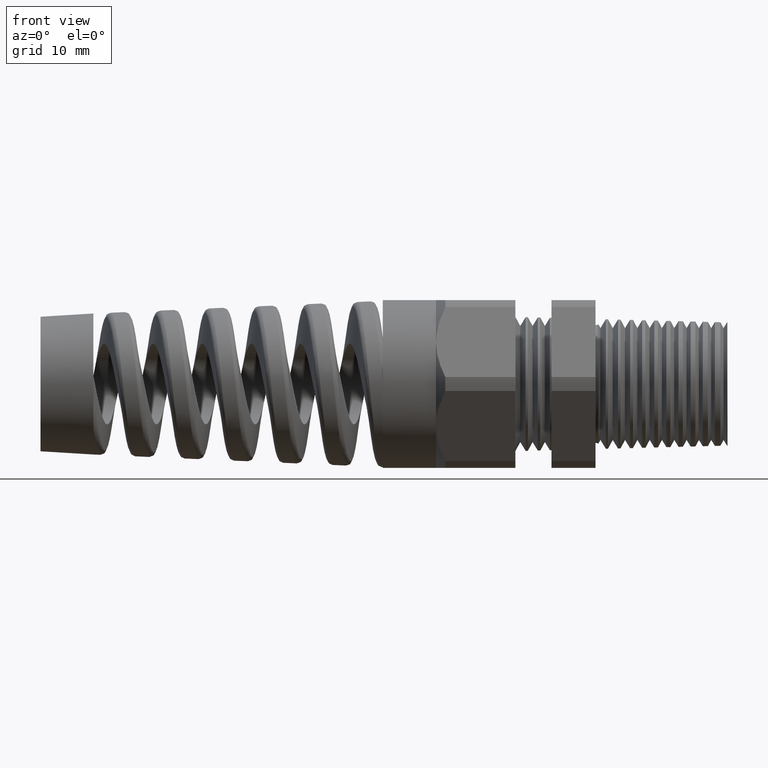
[diagram: clean part render]
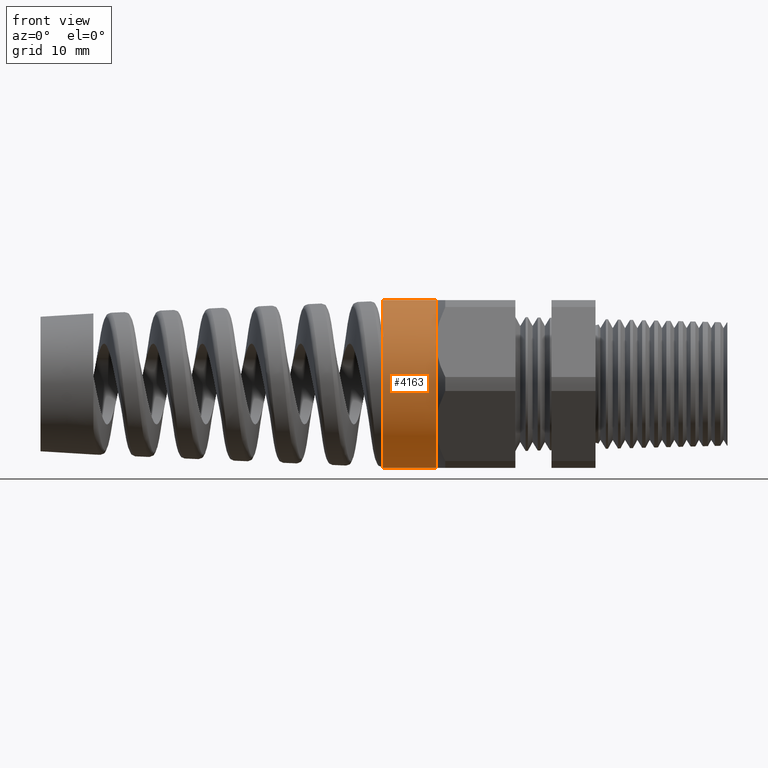
[diagram: same view with one face highlighted and labeled with its STEP entity id]
A machine part, front view. The second image highlights one B-rep face of the part: STEP entity #4163.
In plain terms, the highlighted cylindrical surface (partial cylindrical patch) has radius 9.525 mm, axis along (1, 0, 0).
Its self-contained STEP definition (entity closure, byte-faithful):
#1147 = CARTESIAN_POINT ( 'NONE',  ( -1.260843166534453300, 4.592425496802574200E-017, 0.3749999999999998300 ) ) ;
#1148 = CARTESIAN_POINT ( 'NONE',  ( -1.260843166534453300, 0.0000000000000000000, -0.3749999999999998300 ) ) ;
#3224 = EDGE_CURVE ( 'NONE', #9426, #3229, #5369, .T. ) ;
#3229 = VERTEX_POINT ( 'NONE', #5416 ) ;
#3704 = ORIENTED_EDGE ( 'NONE', *, *, #3224, .T. ) ;
#3711 = ORIENTED_EDGE ( 'NONE', *, *, #4964, .F. ) ;
#3712 = VERTEX_POINT ( 'NONE', #6320 ) ;
#3729 = ORIENTED_EDGE ( 'NONE', *, *, #4149, .F. ) ;
#3872 = VERTEX_POINT ( 'NONE', #6611 ) ;
#4114 = EDGE_LOOP ( 'NONE', ( #4159, #4160, #3704, #3729, #4129, #3711 ) ) ;
#4129 = ORIENTED_EDGE ( 'NONE', *, *, #4130, .F. ) ;
#4130 = EDGE_CURVE ( 'NONE', #3872, #3712, #6876, .T. ) ;
#4149 = EDGE_CURVE ( 'NONE', #3712, #3229, #6912, .T. ) ;
#4158 = EDGE_CURVE ( 'NONE', #9426, #9461, #6904, .T. ) ;
#4159 = ORIENTED_EDGE ( 'NONE', *, *, #9701, .F. ) ;
#4160 = ORIENTED_EDGE ( 'NONE', *, *, #4158, .F. ) ;
#4163 = ADVANCED_FACE ( 'NONE', ( #6969 ), #6965, .T. ) ;
#4964 = EDGE_CURVE ( 'NONE', #9079, #3872, #7905, .T. ) ;
#5367 = VECTOR ( 'NONE', #5429, 39.37007874015748100 ) ;
#5368 = CARTESIAN_POINT ( 'NONE',  ( 0.0000000000000000000, 0.0000000000000000000, -0.3750000000000001100 ) ) ;
#5369 = LINE ( 'NONE', #5368, #5367 ) ;
#5416 = CARTESIAN_POINT ( 'NONE',  ( -1.022519685039369900, 0.0000000000000000000, -0.3749999999999999400 ) ) ;
#5429 = DIRECTION ( 'NONE',  ( 1.000000000000000000, 0.0000000000000000000, 0.0000000000000000000 ) ) ;
#6320 = CARTESIAN_POINT ( 'NONE',  ( -1.022519685039369900, -0.3247595264191645600, -0.1875000000000000300 ) ) ;
#6611 = CARTESIAN_POINT ( 'NONE',  ( -1.022519685039369900, -0.3247595264191647200, 0.1875000000000000600 ) ) ;
#6870 = DIRECTION ( 'NONE',  ( 0.0000000000000000000, 0.0000000000000000000, -1.000000000000000000 ) ) ;
#6871 = DIRECTION ( 'NONE',  ( 1.000000000000000000, 0.0000000000000000000, 0.0000000000000000000 ) ) ;
#6872 = CARTESIAN_POINT ( 'NONE',  ( -1.022519685039369900, 0.0000000000000000000, 0.0000000000000000000 ) ) ;
#6873 = AXIS2_PLACEMENT_3D ( 'NONE', #6872, #6871, #6870 ) ;
#6876 = CIRCLE ( 'NONE', #6873, 0.3750000000000001100 ) ;
#6900 = DIRECTION ( 'NONE',  ( 0.0000000000000000000, 0.0000000000000000000, 1.000000000000000000 ) ) ;
#6901 = DIRECTION ( 'NONE',  ( -1.000000000000000000, 0.0000000000000000000, 0.0000000000000000000 ) ) ;
#6902 = CARTESIAN_POINT ( 'NONE',  ( -1.260843166534453300, 0.0000000000000000000, 0.0000000000000000000 ) ) ;
#6903 = AXIS2_PLACEMENT_3D ( 'NONE', #6902, #6901, #6900 ) ;
#6904 = CIRCLE ( 'NONE', #6903, 0.3749999999999998300 ) ;
#6909 = DIRECTION ( 'NONE',  ( 0.0000000000000000000, 0.0000000000000000000, -1.000000000000000000 ) ) ;
#6910 = DIRECTION ( 'NONE',  ( 1.000000000000000000, 0.0000000000000000000, 0.0000000000000000000 ) ) ;
#6911 = AXIS2_PLACEMENT_3D ( 'NONE', #6919, #6910, #6909 ) ;
#6912 = CIRCLE ( 'NONE', #6911, 0.3750000000000001100 ) ;
#6919 = CARTESIAN_POINT ( 'NONE',  ( -1.022519685039369900, 0.0000000000000000000, 0.0000000000000000000 ) ) ;
#6960 = DIRECTION ( 'NONE',  ( 0.0000000000000000000, 0.0000000000000000000, -1.000000000000000000 ) ) ;
#6961 = DIRECTION ( 'NONE',  ( 1.000000000000000000, 0.0000000000000000000, 0.0000000000000000000 ) ) ;
#6962 = CARTESIAN_POINT ( 'NONE',  ( 0.0000000000000000000, 0.0000000000000000000, 0.0000000000000000000 ) ) ;
#6963 = AXIS2_PLACEMENT_3D ( 'NONE', #6962, #6961, #6960 ) ;
#6965 = CYLINDRICAL_SURFACE ( 'NONE', #6963, 0.3750000000000001100 ) ;
#6969 = FACE_OUTER_BOUND ( 'NONE', #4114, .T. ) ;
#7901 = DIRECTION ( 'NONE',  ( 0.0000000000000000000, 0.0000000000000000000, -1.000000000000000000 ) ) ;
#7902 = DIRECTION ( 'NONE',  ( 1.000000000000000000, 0.0000000000000000000, 0.0000000000000000000 ) ) ;
#7903 = CARTESIAN_POINT ( 'NONE',  ( -1.022519685039369900, 0.0000000000000000000, 0.0000000000000000000 ) ) ;
#7904 = AXIS2_PLACEMENT_3D ( 'NONE', #7903, #7902, #7901 ) ;
#7905 = CIRCLE ( 'NONE', #7904, 0.3750000000000001100 ) ;
#9079 = VERTEX_POINT ( 'NONE', #10221 ) ;
#9426 = VERTEX_POINT ( 'NONE', #1148 ) ;
#9461 = VERTEX_POINT ( 'NONE', #1147 ) ;
#9701 = EDGE_CURVE ( 'NONE', #9461, #9079, #10581, .T. ) ;
#10221 = CARTESIAN_POINT ( 'NONE',  ( -1.022519685039369900, 0.0000000000000000000, 0.3749999999999999400 ) ) ;
#10578 = DIRECTION ( 'NONE',  ( 1.000000000000000000, 0.0000000000000000000, 0.0000000000000000000 ) ) ;
#10579 = VECTOR ( 'NONE', #10578, 39.37007874015748100 ) ;
#10580 = CARTESIAN_POINT ( 'NONE',  ( 0.0000000000000000000, 4.592425496802576100E-017, 0.3750000000000001100 ) ) ;
#10581 = LINE ( 'NONE', #10580, #10579 ) ;